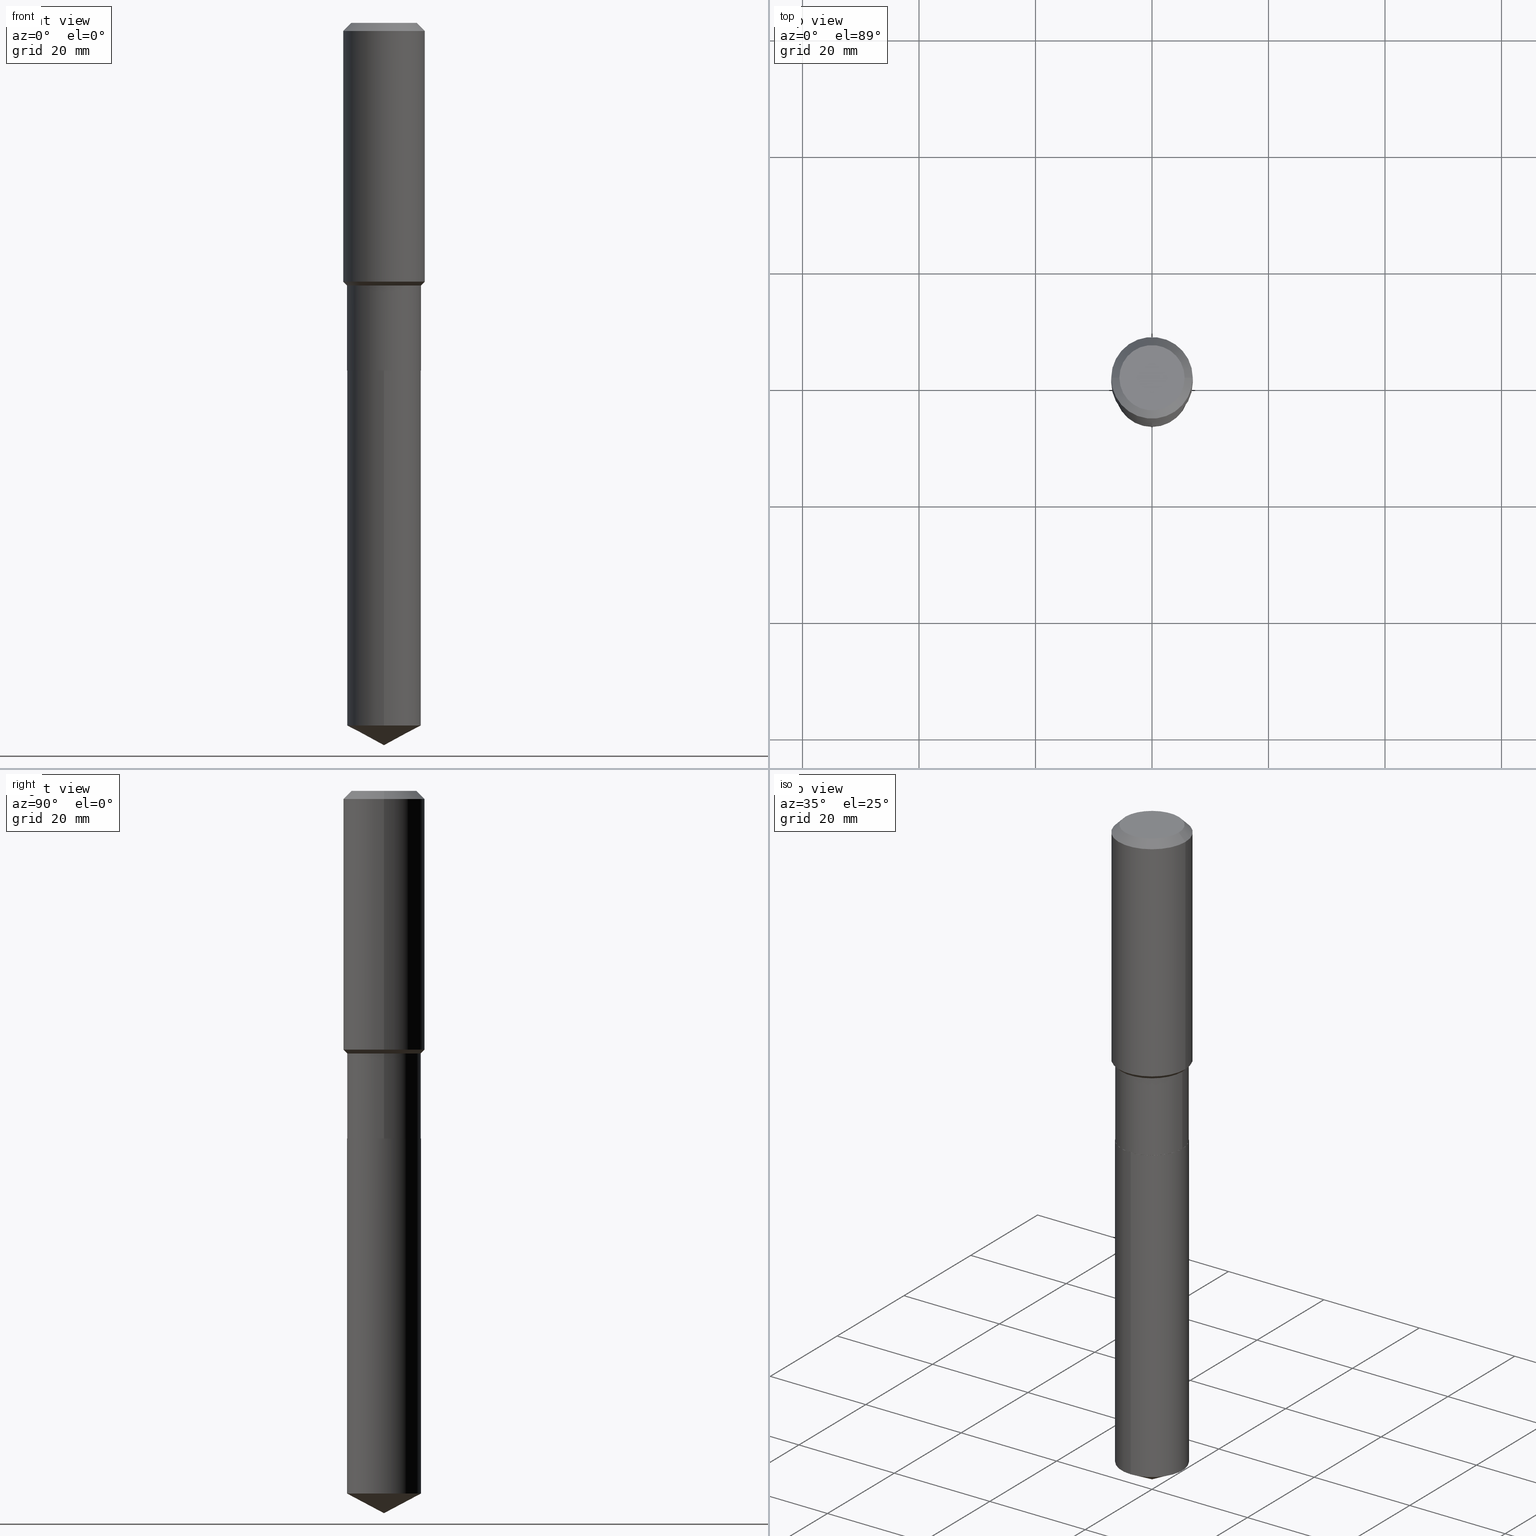
[diagram: canonical four-view strip — front | top / right | iso, engineering-drawing reading convention]
A machine part, canonical four-view strip (front | top / right | iso — engineering-drawing reading convention). The complete STEP part file that produces these views, byte-faithful:
ISO-10303-21;
HEADER;
FILE_DESCRIPTION (( 'STEP AP203' ),
    '1' );
FILE_NAME ('55188.STEP',
    '2024-04-24T17:02:57',
    ( '' ),
    ( '' ),
    'SwSTEP 2.0',
    'SolidWorks 2023',
    '' );
FILE_SCHEMA (( 'CONFIG_CONTROL_DESIGN' ));
ENDSEC;

DATA;
#1 = DIRECTION ( 'NONE',  ( -2.445468806185136597E-29, 3.491481338843145583E-15, 1.000000000000000000 ) ) ;
#2 = PERSON_AND_ORGANIZATION_ROLE ( 'design_owner' ) ;
#3 = FACE_OUTER_BOUND ( 'NONE', #220, .T. ) ;
#4 = EDGE_CURVE ( 'NONE', #83, #251, #306, .T. ) ;
#5 = CARTESIAN_POINT ( 'NONE',  ( 1.193838168162584458E-28, -1.704598046603321300E-14, -4.881999999999999673 ) ) ;
#6 =( LENGTH_UNIT ( ) NAMED_UNIT ( * ) SI_UNIT ( $, .METRE. ) );
#7 = EDGE_CURVE ( 'NONE', #360, #61, #320, .T. ) ;
#8 = CC_DESIGN_DATE_AND_TIME_ASSIGNMENT ( #282, #467, ( #317 ) ) ;
#9 = CIRCLE ( 'NONE', #465, 0.2204800000000000093 ) ;
#10 = EDGE_LOOP ( 'NONE', ( #369, #334, #13 ) ) ;
#11 = PRODUCT ( '55188', '55188', '', ( #316 ) ) ;
#12 = ORIENTED_EDGE ( 'NONE', *, *, #137, .F. ) ;
#13 = ORIENTED_EDGE ( 'NONE', *, *, #205, .F. ) ;
#14 = AXIS2_PLACEMENT_3D ( 'NONE', #433, #102, #438 ) ;
#15 =( GEOMETRIC_REPRESENTATION_CONTEXT ( 3 ) GLOBAL_UNCERTAINTY_ASSIGNED_CONTEXT ( ( #452 ) ) GLOBAL_UNIT_ASSIGNED_CONTEXT ( ( #121, #87, #170 ) ) REPRESENTATION_CONTEXT ( 'NONE', 'WORKASPACE' ) );
#16 = ORIENTED_EDGE ( 'NONE', *, *, #126, .T. ) ;
#17 = FACE_OUTER_BOUND ( 'NONE', #58, .T. ) ;
#18 = VERTEX_POINT ( 'NONE', #377 ) ;
#19 = ORIENTED_EDGE ( 'NONE', *, *, #417, .T. ) ;
#20 = VECTOR ( 'NONE', #47, 39.37007874015748854 ) ;
#21 = DIRECTION ( 'NONE',  ( 2.445387480873790577E-29, -3.491597801317741832E-15, -1.000000000000000000 ) ) ;
#22 = ORIENTED_EDGE ( 'NONE', *, *, #72, .F. ) ;
#23 = DIRECTION ( 'NONE',  ( 1.000000000000000000, -6.982962677686265922E-15, 4.876176775795935793E-29 ) ) ;
#24 = VERTEX_POINT ( 'NONE', #45 ) ;
#25 = CARTESIAN_POINT ( 'NONE',  ( -8.433652487608897204E-28, 1.204187735876223301E-13, 34.48807874015748354 ) ) ;
#26 = CARTESIAN_POINT ( 'NONE',  ( -0.2204800000000000093, 1.635828836874783961E-15, 3.860086710901350968E-18 ) ) ;
#27 = VERTEX_POINT ( 'NONE', #40 ) ;
#28 = CARTESIAN_POINT ( 'NONE',  ( -0.2756000000000001227, 1.958255779754836984E-15, -1.355658510874252567E-29 ) ) ;
#29 = EDGE_LOOP ( 'NONE', ( #285, #86, #19, #295 ) ) ;
#30 = CARTESIAN_POINT ( 'NONE',  ( 5.745628960131976631E-29, -8.203235405611967914E-15, -2.349499999999999478 ) ) ;
#31 = AXIS2_PLACEMENT_3D ( 'NONE', #266, #265, #71 ) ;
#32 = PRODUCT_DEFINITION_FORMATION_WITH_SPECIFIED_SOURCE ( 'ANY', '', #11, .NOT_KNOWN. ) ;
#33 = CC_DESIGN_APPROVAL ( #323, ( #317 ) ) ;
#34 = CARTESIAN_POINT ( 'NONE',  ( -0.2494999999999999996, -6.432177020559940640E-15, -2.349999999999999645 ) ) ;
#35 = APPROVAL_STATUS ( 'not_yet_approved' ) ;
#36 = ADVANCED_FACE ( 'NONE', ( #3 ), #82, .T. ) ;
#37 = MANIFOLD_SOLID_BREP ( 'Body-Move/Copy2[2]', #211 ) ;
#38 = FACE_OUTER_BOUND ( 'NONE', #356, .T. ) ;
#39 = MANIFOLD_SOLID_BREP ( 'Body-Move/Copy2[1]', #247 ) ;
#40 = CARTESIAN_POINT ( 'NONE',  ( -1.745740669421449926E-15, -0.2500000000000165423, -4.749072642084628981 ) ) ;
#41 = DATE_AND_TIME ( #162, #249 ) ;
#42 = AXIS2_PLACEMENT_3D ( 'NONE', #425, #468, #351 ) ;
#43 = ORIENTED_EDGE ( 'NONE', *, *, #7, .T. ) ;
#44 = ADVANCED_FACE ( 'NONE', ( #196 ), #163, .T. ) ;
#45 = CARTESIAN_POINT ( 'NONE',  ( -0.2494999999999999996, -6.429527793385829439E-15, -2.349999999999999645 ) ) ;
#46 = CALENDAR_DATE ( 2024, 24, 4 ) ;
#47 = DIRECTION ( 'NONE',  ( 0.7071067811865497932, -2.468850131082280332E-15, 0.7071067811865451302 ) ) ;
#48 = APPROVAL_DATE_TIME ( #97, #323 ) ;
#49 = CIRCLE ( 'NONE', #307, 0.2756000000000000116 ) ;
#50 = EDGE_CURVE ( 'NONE', #353, #219, #312, .T. ) ;
#51 = DIRECTION ( 'NONE',  ( 0.7071067811864267805, -2.468850131080992517E-15, 0.7071067811866682540 ) ) ;
#52 = ORIENTED_EDGE ( 'NONE', *, *, #376, .T. ) ;
#53 = ORIENTED_EDGE ( 'NONE', *, *, #204, .F. ) ;
#54 = CARTESIAN_POINT ( 'NONE',  ( 1.161351389919563444E-28, -1.658157790858563424E-14, -4.749072642084629869 ) ) ;
#55 = EDGE_CURVE ( 'NONE', #27, #239, #200, .T. ) ;
#56 = CONICAL_SURFACE ( 'NONE', #195, 74.04434902938325536, 1.082104136236484937 ) ;
#57 = AXIS2_PLACEMENT_3D ( 'NONE', #309, #341, #89 ) ;
#58 = EDGE_LOOP ( 'NONE', ( #396, #430, #16, #419 ) ) ;
#59 = CARTESIAN_POINT ( 'NONE',  ( -1.745740669421508894E-15, -0.2500000000000082157, -2.349999999999998312 ) ) ;
#60 = DIRECTION ( 'NONE',  ( -2.445387480873790577E-29, 3.491597801317741832E-15, 1.000000000000000000 ) ) ;
#61 = VERTEX_POINT ( 'NONE', #120 ) ;
#62 = LINE ( 'NONE', #364, #281 ) ;
#63 = CARTESIAN_POINT ( 'NONE',  ( -0.2756000000000000116, -1.191968173029778724E-15, -0.05512000000000035621 ) ) ;
#64 = CIRCLE ( 'NONE', #413, 0.2500000000000000000 ) ;
#65 = ORIENTED_EDGE ( 'NONE', *, *, #55, .T. ) ;
#66 = DIRECTION ( 'NONE',  ( 1.000000000000000000, -6.982962677686266711E-15, 0.000000000000000000 ) ) ;
#67 = ADVANCED_FACE ( 'NONE', ( #338 ), #473, .T. ) ;
#68 = DIRECTION ( 'NONE',  ( -6.982962677686265133E-15, -1.000000000000000000, 3.541896320645574279E-15 ) ) ;
#69 = ORIENTED_EDGE ( 'NONE', *, *, #133, .F. ) ;
#70 = CARTESIAN_POINT ( 'NONE',  ( 0.2204800000000000093, -1.797903149065768707E-15, 3.860086710924123164E-18 ) ) ;
#71 = DIRECTION ( 'NONE',  ( 1.000000000000000000, -6.982962677686267499E-15, 0.000000000000000000 ) ) ;
#72 = EDGE_CURVE ( 'NONE', #18, #434, #322, .T. ) ;
#73 = DIRECTION ( 'NONE',  ( -2.445468806185136597E-29, 3.491481338843145583E-15, 1.000000000000000000 ) ) ;
#74 = DIRECTION ( 'NONE',  ( 1.000000000000000000, -6.982962677686265922E-15, 0.000000000000000000 ) ) ;
#75 = CONICAL_SURFACE ( 'NONE', #308, 0.2499999999999999167, 0.7853981633974516097 ) ;
#76 = DIRECTION ( 'NONE',  ( 1.000000000000000000, -6.982962677686269077E-15, 0.000000000000000000 ) ) ;
#77 = CARTESIAN_POINT ( 'NONE',  ( 0.000000000000000000, 0.000000000000000000, 0.000000000000000000 ) ) ;
#78 = PERSON_AND_ORGANIZATION ( #436, #298 ) ;
#79 = COORDINATED_UNIVERSAL_TIME_OFFSET ( 5, 0, .BEHIND. ) ;
#80 = DIRECTION ( 'NONE',  ( -2.445387480873790577E-29, 3.491597801317742226E-15, 1.000000000000000000 ) ) ;
#81 = DIRECTION ( 'NONE',  ( -2.445468806185136597E-29, 3.491481338843145583E-15, 1.000000000000000000 ) ) ;
#82 = CONICAL_SURFACE ( 'NONE', #151, 0.2494999999999999996, 0.7853981633972775267 ) ;
#83 = VERTEX_POINT ( 'NONE', #124 ) ;
#84 = CIRCLE ( 'NONE', #42, 0.2499999999999999167 ) ;
#85 = AXIS2_PLACEMENT_3D ( 'NONE', #335, #109, #66 ) ;
#86 = ORIENTED_EDGE ( 'NONE', *, *, #72, .T. ) ;
#87 =( NAMED_UNIT ( * ) PLANE_ANGLE_UNIT ( ) SI_UNIT ( $, .RADIAN. ) );
#88 = EDGE_CURVE ( 'NONE', #24, #392, #264, .T. ) ;
#89 = DIRECTION ( 'NONE',  ( -6.982962677686265922E-15, -1.000000000000000000, 4.370956789862821150E-15 ) ) ;
#90 = ADVANCED_FACE ( 'NONE', ( #483 ), #272, .F. ) ;
#91 = ADVANCED_FACE ( 'NONE', ( #386 ), #268, .T. ) ;
#92 = VECTOR ( 'NONE', #397, 39.37007874015748143 ) ;
#93 = APPROVAL_PERSON_ORGANIZATION ( #431, #323, #429 ) ;
#94 = ORIENTED_EDGE ( 'NONE', *, *, #376, .F. ) ;
#95 = EDGE_LOOP ( 'NONE', ( #69, #43, #411, #22 ) ) ;
#96 = CARTESIAN_POINT ( 'NONE',  ( 0.2756000000000000116, -2.083203699582869812E-15, -0.05512000000000035621 ) ) ;
#97 = DATE_AND_TIME ( #357, #199 ) ;
#98 = ADVANCED_FACE ( 'NONE', ( #38 ), #432, .T. ) ;
#99 = AXIS2_PLACEMENT_3D ( 'NONE', #384, #348, #346 ) ;
#100 = ORIENTED_EDGE ( 'NONE', *, *, #462, .F. ) ;
#101 = EDGE_LOOP ( 'NONE', ( #145, #52 ) ) ;
#102 = DIRECTION ( 'NONE',  ( -2.445468806185136597E-29, 3.491481338843145583E-15, 1.000000000000000000 ) ) ;
#103 = ORIENTED_EDGE ( 'NONE', *, *, #288, .T. ) ;
#104 = ORIENTED_EDGE ( 'NONE', *, *, #117, .F. ) ;
#105 = CARTESIAN_POINT ( 'NONE',  ( -0.2500000000000000555, -5.423950551629025389E-15, -2.349499999999999478 ) ) ;
#106 = CARTESIAN_POINT ( 'NONE',  ( 3.950077243030312596E-29, -1.077806442688700878E-14, -2.349999999999999201 ) ) ;
#107 = EDGE_CURVE ( 'NONE', #193, #403, #214, .T. ) ;
#108 = ORIENTED_EDGE ( 'NONE', *, *, #133, .T. ) ;
#109 = DIRECTION ( 'NONE',  ( -2.445468806185136597E-29, 3.491481338843145583E-15, 1.000000000000000000 ) ) ;
#110 = EDGE_CURVE ( 'NONE', #353, #27, #350, .T. ) ;
#111 = ADVANCED_BREP_SHAPE_REPRESENTATION ( '55188', ( #39, #37, #490 ), #15 ) ;
#112 = AXIS2_PLACEMENT_3D ( 'NONE', #123, #302, #310 ) ;
#113 = CARTESIAN_POINT ( 'NONE',  ( 0.2756000000000001227, -1.924504513970336137E-15, 1.343874319409360548E-29 ) ) ;
#114 = CIRCLE ( 'NONE', #85, 0.2500000000000000000 ) ;
#115 = CARTESIAN_POINT ( 'NONE',  ( 0.2499999999999999167, -7.943120045868147316E-15, -1.774999999999999467 ) ) ;
#116 = DIRECTION ( 'NONE',  ( -2.445468806185136597E-29, 3.491481338843145583E-15, 1.000000000000000000 ) ) ;
#117 = EDGE_CURVE ( 'NONE', #239, #258, #463, .T. ) ;
#118 = DIRECTION ( 'NONE',  ( -2.445387480873790577E-29, 3.491597801317742226E-15, 1.000000000000000000 ) ) ;
#119 = EDGE_CURVE ( 'NONE', #61, #360, #84, .T. ) ;
#120 = CARTESIAN_POINT ( 'NONE',  ( 0.2499999999999999167, -7.943120045868147316E-15, -1.774999999999999467 ) ) ;
#121 =( CONVERSION_BASED_UNIT ( 'INCH', #131 ) LENGTH_UNIT ( ) NAMED_UNIT ( #458 ) );
#122 = AXIS2_PLACEMENT_3D ( 'NONE', #370, #116, #440 ) ;
#123 = CARTESIAN_POINT ( 'NONE',  ( 4.340707130978616226E-29, -6.197379376446582216E-15, -1.774999999999999467 ) ) ;
#124 = CARTESIAN_POINT ( 'NONE',  ( 0.2756000000000000116, -2.116954965367370658E-15, -0.05512000000000035621 ) ) ;
#125 = PERSON_AND_ORGANIZATION ( #436, #298 ) ;
#126 = EDGE_CURVE ( 'NONE', #403, #61, #169, .T. ) ;
#127 = APPROVAL_STATUS ( 'not_yet_approved' ) ;
#128 = AXIS2_PLACEMENT_3D ( 'NONE', #134, #319, #469 ) ;
#129 = LOCAL_TIME ( 13, 2, 57.00000000000000000, #79 ) ;
#130 = APPROVAL ( #127, 'UNSPECIFIED' ) ;
#131 = LENGTH_MEASURE_WITH_UNIT ( LENGTH_MEASURE( 0.02539999999999999897 ), #6 );
#132 = ADVANCED_FACE ( 'NONE', ( #277 ), #148, .F. ) ;
#133 = EDGE_CURVE ( 'NONE', #360, #18, #289, .T. ) ;
#134 = CARTESIAN_POINT ( 'NONE',  ( 5.746851694535069433E-29, -8.204981146281390206E-15, -2.349999999999999201 ) ) ;
#135 = VECTOR ( 'NONE', #428, 39.37007874015748854 ) ;
#136 = EDGE_LOOP ( 'NONE', ( #226, #183 ) ) ;
#137 = EDGE_CURVE ( 'NONE', #437, #186, #242, .T. ) ;
#138 = EDGE_LOOP ( 'NONE', ( #325, #244, #104, #143 ) ) ;
#139 = LINE ( 'NONE', #96, #92 ) ;
#140 = CARTESIAN_POINT ( 'NONE',  ( 0.000000000000000000, 0.000000000000000000, 0.000000000000000000 ) ) ;
#141 = AXIS2_PLACEMENT_3D ( 'NONE', #455, #487, #415 ) ;
#142 = FACE_OUTER_BOUND ( 'NONE', #29, .T. ) ;
#143 = ORIENTED_EDGE ( 'NONE', *, *, #55, .F. ) ;
#144 = ADVANCED_FACE ( 'NONE', ( #188 ), #56, .T. ) ;
#145 = ORIENTED_EDGE ( 'NONE', *, *, #117, .T. ) ;
#146 = DIRECTION ( 'NONE',  ( -2.445468806185136877E-29, 3.491481338843145188E-15, 1.000000000000000000 ) ) ;
#147 = ORIENTED_EDGE ( 'NONE', *, *, #88, .F. ) ;
#148 = PLANE ( 'NONE',  #398 ) ;
#149 = CARTESIAN_POINT ( 'NONE',  ( 1.193838168162584458E-28, -1.704598046603321300E-14, -4.881999999999999673 ) ) ;
#150 = DIRECTION ( 'NONE',  ( 1.000000000000000000, -6.982962677686266711E-15, 4.876176775795935793E-29 ) ) ;
#151 = AXIS2_PLACEMENT_3D ( 'NONE', #155, #1, #380 ) ;
#152 = AXIS2_PLACEMENT_3D ( 'NONE', #198, #21, #156 ) ;
#153 = DIRECTION ( 'NONE',  ( -2.445468806185136597E-29, 3.491481338843145583E-15, 1.000000000000000000 ) ) ;
#154 = APPROVAL_PERSON_ORGANIZATION ( #456, #130, #342 ) ;
#155 = CARTESIAN_POINT ( 'NONE',  ( 5.746851694535069433E-29, -8.204981146281390206E-15, -2.349999999999999645 ) ) ;
#156 = DIRECTION ( 'NONE',  ( 6.982962677686265922E-15, 1.000000000000000000, -3.491597801317741832E-15 ) ) ;
#157 = PRODUCT_DEFINITION ( 'UNKNOWN', '', #32, #237 ) ;
#158 = CARTESIAN_POINT ( 'NONE',  ( -4.719860820353095009E-47, 6.738710358733624243E-33, 1.930043355456227170E-18 ) ) ;
#159 = PERSON_AND_ORGANIZATION ( #436, #298 ) ;
#160 = FACE_OUTER_BOUND ( 'NONE', #427, .T. ) ;
#161 = DIRECTION ( 'NONE',  ( -2.445387480873790577E-29, 3.491597801317741832E-15, 1.000000000000000000 ) ) ;
#162 = CALENDAR_DATE ( 2024, 24, 4 ) ;
#163 = CYLINDRICAL_SURFACE ( 'NONE', #141, 0.2499999999999999722 ) ;
#164 = APPROVAL_DATE_TIME ( #208, #190 ) ;
#165 = LINE ( 'NONE', #115, #20 ) ;
#166 = APPLICATION_CONTEXT ( 'configuration controlled 3d designs of mechanical parts and assemblies' ) ;
#167 = DIRECTION ( 'NONE',  ( 1.000000000000000000, -6.982962677686265133E-15, 0.000000000000000000 ) ) ;
#168 = PERSON_AND_ORGANIZATION ( #436, #298 ) ;
#169 = LINE ( 'NONE', #315, #171 ) ;
#170 =( NAMED_UNIT ( * ) SI_UNIT ( $, .STERADIAN. ) SOLID_ANGLE_UNIT ( ) );
#171 = VECTOR ( 'NONE', #464, 39.37007874015748143 ) ;
#172 = EDGE_CURVE ( 'NONE', #219, #258, #62, .T. ) ;
#173 = DIRECTION ( 'NONE',  ( -6.165590087286828929E-15, -0.8829475928589255451, 0.4694715627858933038 ) ) ;
#174 = ORIENTED_EDGE ( 'NONE', *, *, #110, .F. ) ;
#175 = ORIENTED_EDGE ( 'NONE', *, *, #238, .F. ) ;
#176 = AXIS2_PLACEMENT_3D ( 'NONE', #158, #241, #305 ) ;
#177 = CC_DESIGN_SECURITY_CLASSIFICATION ( #317, ( #32 ) ) ;
#178 = SHAPE_DEFINITION_REPRESENTATION ( #180, #111 ) ;
#179 = ORIENTED_EDGE ( 'NONE', *, *, #107, .F. ) ;
#180 = PRODUCT_DEFINITION_SHAPE ( 'NONE', 'NONE',  #157 ) ;
#181 = LINE ( 'NONE', #371, #297 ) ;
#182 = EDGE_LOOP ( 'NONE', ( #223, #189, #321, #365 ) ) ;
#183 = ORIENTED_EDGE ( 'NONE', *, *, #137, .T. ) ;
#184 = DIRECTION ( 'NONE',  ( -1.000000000000000000, 6.982962677686269077E-15, 0.000000000000000000 ) ) ;
#185 = EDGE_CURVE ( 'NONE', #186, #251, #181, .T. ) ;
#186 = VERTEX_POINT ( 'NONE', #26 ) ;
#187 = CARTESIAN_POINT ( 'NONE',  ( 1.347942405969256063E-30, -1.924504513970354330E-16, -0.05512000000000035621 ) ) ;
#188 = FACE_OUTER_BOUND ( 'NONE', #10, .T. ) ;
#189 = ORIENTED_EDGE ( 'NONE', *, *, #445, .T. ) ;
#190 = APPROVAL ( #35, 'UNSPECIFIED' ) ;
#191 = DIRECTION ( 'NONE',  ( -2.445468806185136597E-29, 3.491481338843145583E-15, 1.000000000000000000 ) ) ;
#192 = CARTESIAN_POINT ( 'NONE',  ( 0.2494999999999999996, -9.947230334364113877E-15, -2.349999999999999645 ) ) ;
#193 = VERTEX_POINT ( 'NONE', #192 ) ;
#194 = CARTESIAN_POINT ( 'NONE',  ( 1.347942405969256063E-30, -1.924504513970354330E-16, -0.05512000000000035621 ) ) ;
#195 = AXIS2_PLACEMENT_3D ( 'NONE', #332, #401, #68 ) ;
#196 = FACE_OUTER_BOUND ( 'NONE', #301, .T. ) ;
#197 = AXIS2_PLACEMENT_3D ( 'NONE', #54, #218, #361 ) ;
#198 = CARTESIAN_POINT ( 'NONE',  ( 5.746851694535069433E-29, -8.204981146281390206E-15, -2.349999999999999201 ) ) ;
#199 = LOCAL_TIME ( 13, 2, 57.00000000000000000, #393 ) ;
#200 = LINE ( 'NONE', #207, #349 ) ;
#201 = DIRECTION ( 'NONE',  ( -6.982962677686265922E-15, -1.000000000000000000, 3.278217592397115862E-15 ) ) ;
#202 = DIRECTION ( 'NONE',  ( 6.273719981627760554E-15, 0.8829475928589289868, 0.4694715627858871976 ) ) ;
#203 = DATE_TIME_ROLE ( 'creation_date' ) ;
#204 = EDGE_CURVE ( 'NONE', #437, #83, #139, .T. ) ;
#205 = EDGE_CURVE ( 'NONE', #219, #27, #230, .T. ) ;
#206 = CARTESIAN_POINT ( 'NONE',  ( 4.340707130978616226E-29, -6.197379376446582216E-15, -1.774999999999999467 ) ) ;
#207 = CARTESIAN_POINT ( 'NONE',  ( -1.745740669421508894E-15, -0.2500000000000082157, -2.349999999999998312 ) ) ;
#208 = DATE_AND_TIME ( #414, #447 ) ;
#209 = CC_DESIGN_PERSON_AND_ORGANIZATION_ASSIGNMENT ( #125, #273, ( #317 ) ) ;
#210 = ADVANCED_FACE ( 'NONE', ( #17 ), #327, .T. ) ;
#211 = CLOSED_SHELL ( 'NONE', ( #98, #304, #91, #67, #44, #210, #352, #326, #280, #90, #132, #36 ) ) ;
#212 = EDGE_CURVE ( 'NONE', #193, #24, #354, .T. ) ;
#213 = AXIS2_PLACEMENT_3D ( 'NONE', #187, #262, #474 ) ;
#214 = LINE ( 'NONE', #215, #343 ) ;
#215 = CARTESIAN_POINT ( 'NONE',  ( 0.2494999999999999996, -9.947230334364113877E-15, -2.349999999999999645 ) ) ;
#216 = APPLICATION_CONTEXT ( 'configuration controlled 3d designs of mechanical parts and assemblies' ) ;
#217 = AXIS2_PLACEMENT_3D ( 'NONE', #267, #486, #76 ) ;
#218 = DIRECTION ( 'NONE',  ( -2.445387480873790577E-29, 3.491597801317742226E-15, 1.000000000000000000 ) ) ;
#219 = VERTEX_POINT ( 'NONE', #234 ) ;
#220 = EDGE_LOOP ( 'NONE', ( #147, #424, #374, #404 ) ) ;
#221 = ORIENTED_EDGE ( 'NONE', *, *, #119, .T. ) ;
#222 = FACE_OUTER_BOUND ( 'NONE', #250, .T. ) ;
#223 = ORIENTED_EDGE ( 'NONE', *, *, #245, .T. ) ;
#224 = LINE ( 'NONE', #113, #232 ) ;
#225 = ADVANCED_FACE ( 'NONE', ( #160 ), #271, .T. ) ;
#226 = ORIENTED_EDGE ( 'NONE', *, *, #449, .T. ) ;
#227 = CARTESIAN_POINT ( 'NONE',  ( 5.746851694535069433E-29, -8.204981146281390206E-15, -2.349999999999999201 ) ) ;
#228 = ORIENTED_EDGE ( 'NONE', *, *, #50, .T. ) ;
#229 = DIRECTION ( 'NONE',  ( 1.000000000000000000, -6.982962677686265133E-15, 0.000000000000000000 ) ) ;
#230 = CIRCLE ( 'NONE', #197, 0.2500000000000000000 ) ;
#231 = CARTESIAN_POINT ( 'NONE',  ( 4.278103129540276898E-29, -6.107997454172196500E-15, -1.749399999999999400 ) ) ;
#232 = VECTOR ( 'NONE', #260, 39.37007874015748143 ) ;
#233 = PLANE ( 'NONE',  #152 ) ;
#234 = CARTESIAN_POINT ( 'NONE',  ( 1.776356839400366033E-15, 0.2499999999999833189, -4.749072642084630758 ) ) ;
#235 = DIRECTION ( 'NONE',  ( -2.445468806185136597E-29, 3.491481338843145583E-15, 1.000000000000000000 ) ) ;
#236 = PERSON_AND_ORGANIZATION_ROLE ( 'creator' ) ;
#237 = DESIGN_CONTEXT ( 'detailed design', #216, 'design' ) ;
#238 = EDGE_CURVE ( 'NONE', #61, #434, #165, .T. ) ;
#239 = VERTEX_POINT ( 'NONE', #59 ) ;
#240 = DIRECTION ( 'NONE',  ( -0.7071067811864267805, 7.493145998869918709E-15, 0.7071067811866682540 ) ) ;
#241 = DIRECTION ( 'NONE',  ( 2.438088387897960049E-29, -3.491481338843145188E-15, -1.000000000000000000 ) ) ;
#242 = CIRCLE ( 'NONE', #14, 0.2204800000000000093 ) ;
#243 = VECTOR ( 'NONE', #336, 39.37007874015748143 ) ;
#244 = ORIENTED_EDGE ( 'NONE', *, *, #172, .T. ) ;
#245 = EDGE_CURVE ( 'NONE', #434, #18, #253, .T. ) ;
#246 = CC_DESIGN_PERSON_AND_ORGANIZATION_ASSIGNMENT ( #168, #274, ( #32 ) ) ;
#247 = CLOSED_SHELL ( 'NONE', ( #318, #389, #144, #225, #290 ) ) ;
#248 = AXIS2_PLACEMENT_3D ( 'NONE', #194, #477, #184 ) ;
#249 = LOCAL_TIME ( 13, 2, 57.00000000000000000, #488 ) ;
#250 = EDGE_LOOP ( 'NONE', ( #12, #358, #256, #394 ) ) ;
#251 = VERTEX_POINT ( 'NONE', #63 ) ;
#252 = APPROVAL_STATUS ( 'not_yet_approved' ) ;
#253 = CIRCLE ( 'NONE', #31, 0.2756000000000002337 ) ;
#254 = DIRECTION ( 'NONE',  ( -2.438088387897960049E-29, 3.491481338843145188E-15, 1.000000000000000000 ) ) ;
#255 = CARTESIAN_POINT ( 'NONE',  ( 0.2500000000000000000, -9.948976075033534591E-15, -2.349499999999999478 ) ) ;
#256 = ORIENTED_EDGE ( 'NONE', *, *, #4, .T. ) ;
#257 = DIRECTION ( 'NONE',  ( -0.7071067811865453523, 2.468850131082234184E-15, -0.7071067811865496822 ) ) ;
#258 = VERTEX_POINT ( 'NONE', #294 ) ;
#259 = DIRECTION ( 'NONE',  ( -2.445468806185136597E-29, 3.491481338843145583E-15, 1.000000000000000000 ) ) ;
#260 = DIRECTION ( 'NONE',  ( -2.445468806185136877E-29, 3.491481338843145188E-15, 1.000000000000000000 ) ) ;
#261 = CARTESIAN_POINT ( 'NONE',  ( 1.193876726228599295E-28, -1.704543309240261237E-14, -4.881999999999999673 ) ) ;
#262 = DIRECTION ( 'NONE',  ( 2.445468806185136597E-29, -3.491481338843145583E-15, -1.000000000000000000 ) ) ;
#263 = DIRECTION ( 'NONE',  ( -2.445468806185136597E-29, 3.491481338843145583E-15, 1.000000000000000000 ) ) ;
#264 = LINE ( 'NONE', #34, #368 ) ;
#265 = DIRECTION ( 'NONE',  ( -2.445468806185136597E-29, 3.491481338843145583E-15, 1.000000000000000000 ) ) ;
#266 = CARTESIAN_POINT ( 'NONE',  ( 4.278103129540276898E-29, -6.107997454172196500E-15, -1.749399999999999400 ) ) ;
#267 = CARTESIAN_POINT ( 'NONE',  ( 5.746851694535069433E-29, -8.204981146281390206E-15, -2.349999999999999645 ) ) ;
#268 = CYLINDRICAL_SURFACE ( 'NONE', #446, 0.2756000000000001227 ) ;
#269 = APPROVAL_PERSON_ORGANIZATION ( #159, #190, #345 ) ;
#270 = APPROVAL_DATE_TIME ( #41, #130 ) ;
#271 = CYLINDRICAL_SURFACE ( 'NONE', #480, 0.2500000000000000000 ) ;
#272 = PLANE ( 'NONE',  #176 ) ;
#273 = PERSON_AND_ORGANIZATION_ROLE ( 'classification_officer' ) ;
#274 = PERSON_AND_ORGANIZATION_ROLE ( 'creator' ) ;
#275 = VECTOR ( 'NONE', #146, 39.37007874015748143 ) ;
#276 = AXIS2_PLACEMENT_3D ( 'NONE', #227, #435, #410 ) ;
#277 = FACE_OUTER_BOUND ( 'NONE', #472, .T. ) ;
#278 = DIRECTION ( 'NONE',  ( 1.000000000000000000, -6.982962677686266711E-15, 4.876132675269083677E-29 ) ) ;
#279 = CC_DESIGN_PERSON_AND_ORGANIZATION_ASSIGNMENT ( #416, #311, ( #32 ) ) ;
#280 = ADVANCED_FACE ( 'NONE', ( #412 ), #286, .T. ) ;
#281 = VECTOR ( 'NONE', #60, 39.37007874015748143 ) ;
#282 = DATE_AND_TIME ( #391, #481 ) ;
#283 = ORIENTED_EDGE ( 'NONE', *, *, #245, .F. ) ;
#284 = CC_DESIGN_PERSON_AND_ORGANIZATION_ASSIGNMENT ( #78, #236, ( #157 ) ) ;
#285 = ORIENTED_EDGE ( 'NONE', *, *, #445, .F. ) ;
#286 = CONICAL_SURFACE ( 'NONE', #213, 0.2756000000000000116, 0.7853981633974452814 ) ;
#287 = CIRCLE ( 'NONE', #331, 0.2494999999999999996 ) ;
#288 = EDGE_CURVE ( 'NONE', #251, #83, #49, .T. ) ;
#289 = LINE ( 'NONE', #442, #135 ) ;
#290 = ADVANCED_FACE ( 'NONE', ( #333 ), #233, .F. ) ;
#291 = CYLINDRICAL_SURFACE ( 'NONE', #122, 0.2756000000000001227 ) ;
#292 = ORIENTED_EDGE ( 'NONE', *, *, #119, .F. ) ;
#293 = EDGE_LOOP ( 'NONE', ( #53, #314, #441, #103 ) ) ;
#294 = CARTESIAN_POINT ( 'NONE',  ( 1.776356839400367216E-15, 0.2499999999999918399, -2.350000000000000089 ) ) ;
#295 = ORIENTED_EDGE ( 'NONE', *, *, #288, .F. ) ;
#296 = LINE ( 'NONE', #443, #275 ) ;
#297 = VECTOR ( 'NONE', #257, 39.37007874015748143 ) ;
#298 = ORGANIZATION ( 'UNSPECIFIED', 'UNSPECIFIED', '' ) ;
#299 = ORIENTED_EDGE ( 'NONE', *, *, #205, .T. ) ;
#300 = DIRECTION ( 'NONE',  ( -6.982962677686265133E-15, -1.000000000000000000, 3.541896320645574279E-15 ) ) ;
#301 = EDGE_LOOP ( 'NONE', ( #439, #475, #292, #362 ) ) ;
#302 = DIRECTION ( 'NONE',  ( -2.445468806185136597E-29, 3.491481338843145583E-15, 1.000000000000000000 ) ) ;
#303 = CYLINDRICAL_SURFACE ( 'NONE', #337, 0.2500000000000000000 ) ;
#304 = ADVANCED_FACE ( 'NONE', ( #222 ), #489, .T. ) ;
#305 = DIRECTION ( 'NONE',  ( -1.000000000000000000, 6.982962677686265922E-15, -4.876176775795935793E-29 ) ) ;
#306 = CIRCLE ( 'NONE', #367, 0.2756000000000000116 ) ;
#307 = AXIS2_PLACEMENT_3D ( 'NONE', #381, #448, #74 ) ;
#308 = AXIS2_PLACEMENT_3D ( 'NONE', #405, #191, #229 ) ;
#309 = CARTESIAN_POINT ( 'NONE',  ( 1.161351389919563444E-28, -1.658157790858563424E-14, -4.749072642084629869 ) ) ;
#310 = DIRECTION ( 'NONE',  ( 1.000000000000000000, -6.982962677686265133E-15, 0.000000000000000000 ) ) ;
#311 = PERSON_AND_ORGANIZATION_ROLE ( 'design_supplier' ) ;
#312 = LINE ( 'NONE', #261, #420 ) ;
#313 = DIRECTION ( 'NONE',  ( 0.000000000000000000, 0.000000000000000000, 1.000000000000000000 ) ) ;
#314 = ORIENTED_EDGE ( 'NONE', *, *, #449, .F. ) ;
#315 = CARTESIAN_POINT ( 'NONE',  ( 0.2499999999999999722, -1.745740669421566480E-15, 1.219044193948983808E-29 ) ) ;
#316 = MECHANICAL_CONTEXT ( 'NONE', #166, 'mechanical' ) ;
#317 = SECURITY_CLASSIFICATION ( '', '', #459 ) ;
#318 = ADVANCED_FACE ( 'NONE', ( #451 ), #303, .T. ) ;
#319 = DIRECTION ( 'NONE',  ( -2.445387480873790577E-29, 3.491597801317742226E-15, 1.000000000000000000 ) ) ;
#320 = CIRCLE ( 'NONE', #444, 0.2499999999999999167 ) ;
#321 = ORIENTED_EDGE ( 'NONE', *, *, #4, .F. ) ;
#322 = CIRCLE ( 'NONE', #379, 0.2756000000000002337 ) ;
#323 = APPROVAL ( #252, 'UNSPECIFIED' ) ;
#324 = AXIS2_PLACEMENT_3D ( 'NONE', #25, #118, #300 ) ;
#325 = ORIENTED_EDGE ( 'NONE', *, *, #462, .T. ) ;
#326 = ADVANCED_FACE ( 'NONE', ( #142 ), #291, .T. ) ;
#327 = CYLINDRICAL_SURFACE ( 'NONE', #423, 0.2499999999999999722 ) ;
#328 = COORDINATED_UNIVERSAL_TIME_OFFSET ( 5, 0, .BEHIND. ) ;
#329 = EDGE_CURVE ( 'NONE', #392, #360, #296, .T. ) ;
#330 = CARTESIAN_POINT ( 'NONE',  ( 5.746851694535069433E-29, -8.204981146281390206E-15, -2.349999999999999201 ) ) ;
#331 = AXIS2_PLACEMENT_3D ( 'NONE', #466, #81, #385 ) ;
#332 = CARTESIAN_POINT ( 'NONE',  ( -8.433652487608897204E-28, 1.204187735876223301E-13, 34.48807874015748354 ) ) ;
#333 = FACE_OUTER_BOUND ( 'NONE', #101, .T. ) ;
#334 = ORIENTED_EDGE ( 'NONE', *, *, #110, .T. ) ;
#335 = CARTESIAN_POINT ( 'NONE',  ( 5.745628960131976631E-29, -8.203235405611967914E-15, -2.349499999999999478 ) ) ;
#336 = DIRECTION ( 'NONE',  ( -2.445468806185136877E-29, 3.491481338843145188E-15, 1.000000000000000000 ) ) ;
#337 = AXIS2_PLACEMENT_3D ( 'NONE', #330, #402, #366 ) ;
#338 = FACE_OUTER_BOUND ( 'NONE', #470, .T. ) ;
#339 = DIRECTION ( 'NONE',  ( 1.000000000000000000, -6.982962677686266711E-15, 0.000000000000000000 ) ) ;
#340 = DIRECTION ( 'NONE',  ( 1.000000000000000000, -6.982962677686267499E-15, 0.000000000000000000 ) ) ;
#341 = DIRECTION ( 'NONE',  ( -2.445387480873790577E-29, 3.491597801317742226E-15, 1.000000000000000000 ) ) ;
#342 = APPROVAL_ROLE ( '' ) ;
#343 = VECTOR ( 'NONE', #51, 39.37007874015748143 ) ;
#344 = DIRECTION ( 'NONE',  ( 1.000000000000000000, -6.982962677686265922E-15, 0.000000000000000000 ) ) ;
#345 = APPROVAL_ROLE ( '' ) ;
#346 = DIRECTION ( 'NONE',  ( 1.000000000000000000, -6.982962677686269077E-15, 0.000000000000000000 ) ) ;
#347 = DIRECTION ( 'NONE',  ( 1.000000000000000000, 0.000000000000000000, 0.000000000000000000 ) ) ;
#348 = DIRECTION ( 'NONE',  ( -2.445468806185136597E-29, 3.491481338843145583E-15, 1.000000000000000000 ) ) ;
#349 = VECTOR ( 'NONE', #161, 39.37007874015748143 ) ;
#350 = LINE ( 'NONE', #5, #390 ) ;
#351 = DIRECTION ( 'NONE',  ( 1.000000000000000000, -6.982962677686265133E-15, 0.000000000000000000 ) ) ;
#352 = ADVANCED_FACE ( 'NONE', ( #478 ), #75, .T. ) ;
#353 = VERTEX_POINT ( 'NONE', #149 ) ;
#354 = CIRCLE ( 'NONE', #217, 0.2494999999999999996 ) ;
#355 = CC_DESIGN_APPROVAL ( #190, ( #157 ) ) ;
#356 = EDGE_LOOP ( 'NONE', ( #363, #426, #407, #179 ) ) ;
#357 = CALENDAR_DATE ( 2024, 24, 4 ) ;
#358 = ORIENTED_EDGE ( 'NONE', *, *, #204, .T. ) ;
#359 = CC_DESIGN_PERSON_AND_ORGANIZATION_ASSIGNMENT ( #422, #2, ( #11 ) ) ;
#360 = VERTEX_POINT ( 'NONE', #378 ) ;
#361 = DIRECTION ( 'NONE',  ( -6.982962677686265922E-15, -1.000000000000000000, 4.370956789862821150E-15 ) ) ;
#362 = ORIENTED_EDGE ( 'NONE', *, *, #126, .F. ) ;
#363 = ORIENTED_EDGE ( 'NONE', *, *, #212, .T. ) ;
#364 = CARTESIAN_POINT ( 'NONE',  ( 1.776356839400307657E-15, 0.2499999999999918121, -2.350000000000000089 ) ) ;
#365 = ORIENTED_EDGE ( 'NONE', *, *, #417, .F. ) ;
#366 = DIRECTION ( 'NONE',  ( -6.982962677686265922E-15, -1.000000000000000000, 3.278217592397115862E-15 ) ) ;
#367 = AXIS2_PLACEMENT_3D ( 'NONE', #450, #453, #344 ) ;
#368 = VECTOR ( 'NONE', #240, 39.37007874015748143 ) ;
#369 = ORIENTED_EDGE ( 'NONE', *, *, #50, .F. ) ;
#370 = CARTESIAN_POINT ( 'NONE',  ( 0.000000000000000000, 0.000000000000000000, 0.000000000000000000 ) ) ;
#371 = CARTESIAN_POINT ( 'NONE',  ( -0.2756000000000000116, 1.732054062573300039E-15, -0.05512000000000035621 ) ) ;
#372 = ORIENTED_EDGE ( 'NONE', *, *, #172, .F. ) ;
#373 = EDGE_CURVE ( 'NONE', #403, #392, #64, .T. ) ;
#374 = ORIENTED_EDGE ( 'NONE', *, *, #107, .T. ) ;
#375 = LINE ( 'NONE', #28, #243 ) ;
#376 = EDGE_CURVE ( 'NONE', #258, #239, #421, .T. ) ;
#377 = CARTESIAN_POINT ( 'NONE',  ( -0.2756000000000002337, -4.149741674417359122E-15, -1.749399999999999400 ) ) ;
#378 = CARTESIAN_POINT ( 'NONE',  ( -0.2499999999999999167, -5.423950551629025389E-15, -1.774999999999999467 ) ) ;
#379 = AXIS2_PLACEMENT_3D ( 'NONE', #231, #457, #340 ) ;
#380 = DIRECTION ( 'NONE',  ( 1.000000000000000000, -6.982962677686269077E-15, 0.000000000000000000 ) ) ;
#381 = CARTESIAN_POINT ( 'NONE',  ( 1.347942405969256063E-30, -1.924504513970354330E-16, -0.05512000000000035621 ) ) ;
#382 = CARTESIAN_POINT ( 'NONE',  ( 5.746851694535069433E-29, -8.204981146281390206E-15, -2.349999999999999201 ) ) ;
#383 = DIRECTION ( 'NONE',  ( 1.000000000000000000, -6.982962677686267499E-15, 4.876176775795935793E-29 ) ) ;
#384 = CARTESIAN_POINT ( 'NONE',  ( 5.746851694535069433E-29, -8.204981146281390206E-15, -2.349999999999999645 ) ) ;
#385 = DIRECTION ( 'NONE',  ( 1.000000000000000000, -6.982962677686269077E-15, 0.000000000000000000 ) ) ;
#386 = FACE_OUTER_BOUND ( 'NONE', #182, .T. ) ;
#387 = CIRCLE ( 'NONE', #57, 0.2500000000000000000 ) ;
#388 = APPLICATION_PROTOCOL_DEFINITION ( 'international standard', 'config_control_design', 1994, #166 ) ;
#389 = ADVANCED_FACE ( 'NONE', ( #482 ), #406, .T. ) ;
#390 = VECTOR ( 'NONE', #173, 39.37007874015748143 ) ;
#391 = CALENDAR_DATE ( 2024, 24, 4 ) ;
#392 = VERTEX_POINT ( 'NONE', #105 ) ;
#393 = COORDINATED_UNIVERSAL_TIME_OFFSET ( 5, 0, .BEHIND. ) ;
#394 = ORIENTED_EDGE ( 'NONE', *, *, #185, .F. ) ;
#395 = ORIENTED_EDGE ( 'NONE', *, *, #212, .F. ) ;
#396 = ORIENTED_EDGE ( 'NONE', *, *, #329, .F. ) ;
#397 = DIRECTION ( 'NONE',  ( 0.7071067811865453523, -7.319954787623248157E-15, -0.7071067811865496822 ) ) ;
#398 = AXIS2_PLACEMENT_3D ( 'NONE', #106, #254, #23 ) ;
#399 = CC_DESIGN_APPROVAL ( #130, ( #32 ) ) ;
#400 = ORIENTED_EDGE ( 'NONE', *, *, #485, .F. ) ;
#401 = DIRECTION ( 'NONE',  ( -2.445387480873790577E-29, 3.491597801317742226E-15, 1.000000000000000000 ) ) ;
#402 = DIRECTION ( 'NONE',  ( -2.445387480873790577E-29, 3.491597801317742226E-15, 1.000000000000000000 ) ) ;
#403 = VERTEX_POINT ( 'NONE', #255 ) ;
#404 = ORIENTED_EDGE ( 'NONE', *, *, #409, .F. ) ;
#405 = CARTESIAN_POINT ( 'NONE',  ( 4.340707130978616226E-29, -6.197379376446582216E-15, -1.774999999999999467 ) ) ;
#406 = CONICAL_SURFACE ( 'NONE', #324, 74.04434902938325536, 1.082104136236484937 ) ;
#407 = ORIENTED_EDGE ( 'NONE', *, *, #373, .F. ) ;
#408 = CARTESIAN_POINT ( 'NONE',  ( 0.2756000000000002337, -8.032501968142533032E-15, -1.749399999999999400 ) ) ;
#409 = EDGE_CURVE ( 'NONE', #392, #403, #114, .T. ) ;
#410 = DIRECTION ( 'NONE',  ( -6.982962677686265922E-15, -1.000000000000000000, 3.278217592397115862E-15 ) ) ;
#411 = ORIENTED_EDGE ( 'NONE', *, *, #238, .T. ) ;
#412 = FACE_OUTER_BOUND ( 'NONE', #293, .T. ) ;
#413 = AXIS2_PLACEMENT_3D ( 'NONE', #30, #259, #339 ) ;
#414 = CALENDAR_DATE ( 2024, 24, 4 ) ;
#415 = DIRECTION ( 'NONE',  ( 1.000000000000000000, -6.982962677686266711E-15, 4.876176775795935793E-29 ) ) ;
#416 = PERSON_AND_ORGANIZATION ( #436, #298 ) ;
#417 = EDGE_CURVE ( 'NONE', #434, #83, #224, .T. ) ;
#418 = DATE_AND_TIME ( #46, #129 ) ;
#419 = ORIENTED_EDGE ( 'NONE', *, *, #7, .F. ) ;
#420 = VECTOR ( 'NONE', #202, 39.37007874015747433 ) ;
#421 = CIRCLE ( 'NONE', #276, 0.2500000000000000000 ) ;
#422 = PERSON_AND_ORGANIZATION ( #436, #298 ) ;
#423 = AXIS2_PLACEMENT_3D ( 'NONE', #140, #263, #150 ) ;
#424 = ORIENTED_EDGE ( 'NONE', *, *, #485, .T. ) ;
#425 = CARTESIAN_POINT ( 'NONE',  ( 4.340707130978616226E-29, -6.197379376446582216E-15, -1.774999999999999467 ) ) ;
#426 = ORIENTED_EDGE ( 'NONE', *, *, #88, .T. ) ;
#427 = EDGE_LOOP ( 'NONE', ( #372, #299, #65, #94 ) ) ;
#428 = DIRECTION ( 'NONE',  ( -0.7071067811865497932, 7.493145998870362049E-15, 0.7071067811865451302 ) ) ;
#429 = APPROVAL_ROLE ( '' ) ;
#430 = ORIENTED_EDGE ( 'NONE', *, *, #409, .T. ) ;
#431 = PERSON_AND_ORGANIZATION ( #436, #298 ) ;
#432 = CONICAL_SURFACE ( 'NONE', #99, 0.2494999999999999996, 0.7853981633972775267 ) ;
#433 = CARTESIAN_POINT ( 'NONE',  ( -9.439721640706190018E-47, 1.347742071746724849E-32, 3.860086710912454339E-18 ) ) ;
#434 = VERTEX_POINT ( 'NONE', #408 ) ;
#435 = DIRECTION ( 'NONE',  ( -2.445387480873790577E-29, 3.491597801317742226E-15, 1.000000000000000000 ) ) ;
#436 = PERSON ( 'UNSPECIFIED', 'UNSPECIFIED', 'UNSPECIFIED', ('UNSPECIFIED'), ('UNSPECIFIED'), ('UNSPECIFIED') ) ;
#437 = VERTEX_POINT ( 'NONE', #70 ) ;
#438 = DIRECTION ( 'NONE',  ( 1.000000000000000000, -6.982962677686266711E-15, 4.876132675269083677E-29 ) ) ;
#439 = ORIENTED_EDGE ( 'NONE', *, *, #373, .T. ) ;
#440 = DIRECTION ( 'NONE',  ( 1.000000000000000000, -6.982962677686267499E-15, 4.876176775795935793E-29 ) ) ;
#441 = ORIENTED_EDGE ( 'NONE', *, *, #185, .T. ) ;
#442 = CARTESIAN_POINT ( 'NONE',  ( -0.2499999999999999167, -4.421022537046331751E-15, -1.774999999999999467 ) ) ;
#443 = CARTESIAN_POINT ( 'NONE',  ( -0.2499999999999999722, 1.776356839400250267E-15, -1.229733772563726305E-29 ) ) ;
#444 = AXIS2_PLACEMENT_3D ( 'NONE', #206, #73, #167 ) ;
#445 = EDGE_CURVE ( 'NONE', #18, #251, #375, .T. ) ;
#446 = AXIS2_PLACEMENT_3D ( 'NONE', #77, #235, #383 ) ;
#447 = LOCAL_TIME ( 13, 2, 57.00000000000000000, #454 ) ;
#448 = DIRECTION ( 'NONE',  ( -2.445468806185136597E-29, 3.491481338843145583E-15, 1.000000000000000000 ) ) ;
#449 = EDGE_CURVE ( 'NONE', #186, #437, #9, .T. ) ;
#450 = CARTESIAN_POINT ( 'NONE',  ( 1.347942405969256063E-30, -1.924504513970354330E-16, -0.05512000000000035621 ) ) ;
#451 = FACE_OUTER_BOUND ( 'NONE', #138, .T. ) ;
#452 = UNCERTAINTY_MEASURE_WITH_UNIT (LENGTH_MEASURE( 1.000000000000000082E-05 ), #121, 'distance_accuracy_value', 'NONE');
#453 = DIRECTION ( 'NONE',  ( -2.445468806185136597E-29, 3.491481338843145583E-15, 1.000000000000000000 ) ) ;
#454 = COORDINATED_UNIVERSAL_TIME_OFFSET ( 5, 0, .BEHIND. ) ;
#455 = CARTESIAN_POINT ( 'NONE',  ( 0.000000000000000000, 0.000000000000000000, 0.000000000000000000 ) ) ;
#456 = PERSON_AND_ORGANIZATION ( #436, #298 ) ;
#457 = DIRECTION ( 'NONE',  ( -2.445468806185136597E-29, 3.491481338843145583E-15, 1.000000000000000000 ) ) ;
#458 = DIMENSIONAL_EXPONENTS ( 1.000000000000000000, 0.000000000000000000, 0.000000000000000000, 0.000000000000000000, 0.000000000000000000, 0.000000000000000000, 0.000000000000000000 ) ;
#459 = SECURITY_CLASSIFICATION_LEVEL ( 'unclassified' ) ;
#460 = CC_DESIGN_DATE_AND_TIME_ASSIGNMENT ( #418, #203, ( #157 ) ) ;
#461 = APPLICATION_PROTOCOL_DEFINITION ( 'international standard', 'config_control_design', 1994, #216 ) ;
#462 = EDGE_CURVE ( 'NONE', #27, #219, #387, .T. ) ;
#463 = CIRCLE ( 'NONE', #128, 0.2500000000000000000 ) ;
#464 = DIRECTION ( 'NONE',  ( -2.445468806185136877E-29, 3.491481338843145188E-15, 1.000000000000000000 ) ) ;
#465 = AXIS2_PLACEMENT_3D ( 'NONE', #479, #153, #278 ) ;
#466 = CARTESIAN_POINT ( 'NONE',  ( 5.746851694535069433E-29, -8.204981146281390206E-15, -2.349999999999999645 ) ) ;
#467 = DATE_TIME_ROLE ( 'classification_date' ) ;
#468 = DIRECTION ( 'NONE',  ( -2.445468806185136597E-29, 3.491481338843145583E-15, 1.000000000000000000 ) ) ;
#469 = DIRECTION ( 'NONE',  ( -6.982962677686265922E-15, -1.000000000000000000, 3.278217592397115862E-15 ) ) ;
#470 = EDGE_LOOP ( 'NONE', ( #221, #108, #283, #175 ) ) ;
#471 = EDGE_LOOP ( 'NONE', ( #174, #228, #100 ) ) ;
#472 = EDGE_LOOP ( 'NONE', ( #395, #400 ) ) ;
#473 = CONICAL_SURFACE ( 'NONE', #112, 0.2499999999999999167, 0.7853981633974516097 ) ;
#474 = DIRECTION ( 'NONE',  ( -1.000000000000000000, 6.982962677686269077E-15, 0.000000000000000000 ) ) ;
#475 = ORIENTED_EDGE ( 'NONE', *, *, #329, .T. ) ;
#476 = PRODUCT_RELATED_PRODUCT_CATEGORY ( 'detail', '', ( #11 ) ) ;
#477 = DIRECTION ( 'NONE',  ( 2.445468806185136597E-29, -3.491481338843145583E-15, -1.000000000000000000 ) ) ;
#478 = FACE_OUTER_BOUND ( 'NONE', #95, .T. ) ;
#479 = CARTESIAN_POINT ( 'NONE',  ( -9.439721640706190018E-47, 1.347742071746724849E-32, 3.860086710912454339E-18 ) ) ;
#480 = AXIS2_PLACEMENT_3D ( 'NONE', #382, #80, #201 ) ;
#481 = LOCAL_TIME ( 13, 2, 57.00000000000000000, #328 ) ;
#482 = FACE_OUTER_BOUND ( 'NONE', #471, .T. ) ;
#483 = FACE_OUTER_BOUND ( 'NONE', #136, .T. ) ;
#484 = CARTESIAN_POINT ( 'NONE',  ( 0.000000000000000000, 0.000000000000000000, 0.000000000000000000 ) ) ;
#485 = EDGE_CURVE ( 'NONE', #24, #193, #287, .T. ) ;
#486 = DIRECTION ( 'NONE',  ( -2.445468806185136597E-29, 3.491481338843145583E-15, 1.000000000000000000 ) ) ;
#487 = DIRECTION ( 'NONE',  ( -2.445468806185136597E-29, 3.491481338843145583E-15, 1.000000000000000000 ) ) ;
#488 = COORDINATED_UNIVERSAL_TIME_OFFSET ( 5, 0, .BEHIND. ) ;
#489 = CONICAL_SURFACE ( 'NONE', #248, 0.2756000000000000116, 0.7853981633974452814 ) ;
#490 = AXIS2_PLACEMENT_3D ( 'NONE', #484, #313, #347 ) ;
ENDSEC;
END-ISO-10303-21;
